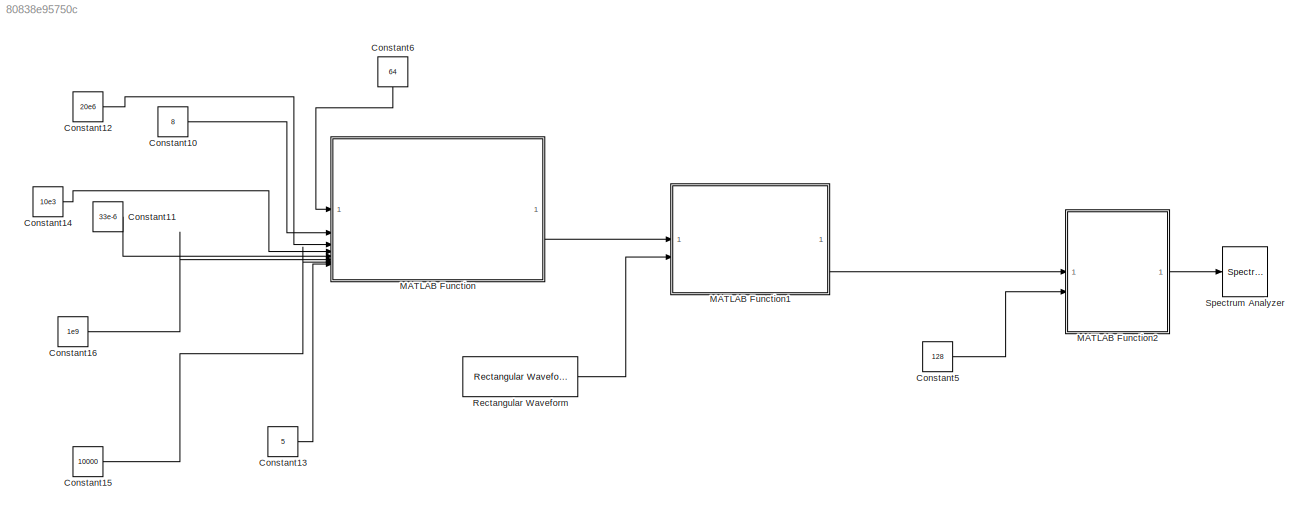
MODEL slx_80838e95750c
KIND model
CONFIG AbsTol = auto
CONFIG EnableMultiTasking = off
CONFIG FixedStep = auto
CONFIG MaxStep = auto
CONFIG MinStep = auto
CONFIG RelTol = 1e-3
CONFIG SampleTimeConstraint = Unconstrained
CONFIG SolverName = VariableStepAuto
CONFIG StartTime = 0.0
CONFIG StopTime = 0.01
BLOCK [Constant] Constant10
  Value = 8
BLOCK [Constant] Constant11
  Value = 33e-6
BLOCK [Constant] Constant12
  Value = 20e6
BLOCK [Constant] Constant13
  Value = 5
BLOCK [Constant] Constant14
  Value = 10e3
BLOCK [Constant] Constant15
  Value = 10000
BLOCK [Constant] Constant16
  Value = 1e9
BLOCK [Constant] Constant5
  Value = 128
BLOCK [Constant] Constant6
  NameLocation = left
  Value = 64
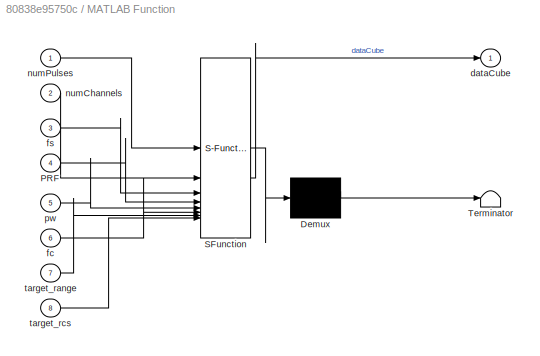
BLOCK [SubSystem] MATLAB Function
  ErrorFcn = Stateflow.Translate.translate
  PermitHierarchicalResolution = ExplicitOnly
  SFBlockType = MATLAB Function
  TreatAsAtomicUnit = on
BLOCK [Demux] MATLAB Function/ Demux 
  Outputs = 1
BLOCK [S-Function] MATLAB Function/ SFunction 
  EnableBusSupport = off
  FunctionName = sf_sfun
  PortCounts = [8 2]
  SFcnIsStateOwnerBlock = off
  SFunctionDeploymentMode = off
  Tag = Stateflow S-Function 2
BLOCK [Terminator] MATLAB Function/ Terminator 
BLOCK [Inport] MATLAB Function/PRF
  Port = 4
BLOCK [Outport] MATLAB Function/dataCube
BLOCK [Inport] MATLAB Function/fc
  Port = 6
BLOCK [Inport] MATLAB Function/fs
  Port = 3
BLOCK [Inport] MATLAB Function/numChannels
  Port = 2
BLOCK [Inport] MATLAB Function/numPulses
BLOCK [Inport] MATLAB Function/pw
  Port = 5
BLOCK [Inport] MATLAB Function/target_range
  Port = 7
BLOCK [Inport] MATLAB Function/target_rcs
  Port = 8
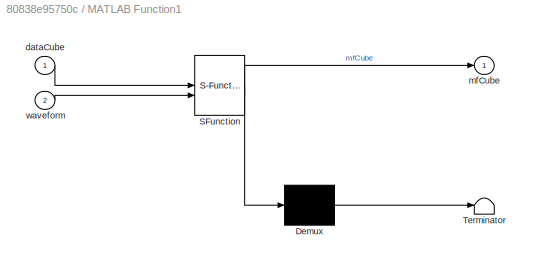
BLOCK [SubSystem] MATLAB Function1
  ErrorFcn = Stateflow.Translate.translate
  PermitHierarchicalResolution = ExplicitOnly
  SFBlockType = MATLAB Function
  TreatAsAtomicUnit = on
BLOCK [Demux] MATLAB Function1/ Demux 
  Outputs = 1
BLOCK [S-Function] MATLAB Function1/ SFunction 
  EnableBusSupport = off
  FunctionName = sf_sfun
  PortCounts = [2 2]
  SFcnIsStateOwnerBlock = off
  SFunctionDeploymentMode = off
  Tag = Stateflow S-Function 1
BLOCK [Terminator] MATLAB Function1/ Terminator 
BLOCK [Inport] MATLAB Function1/dataCube
BLOCK [Outport] MATLAB Function1/mfCube
BLOCK [Inport] MATLAB Function1/waveform
  Port = 2
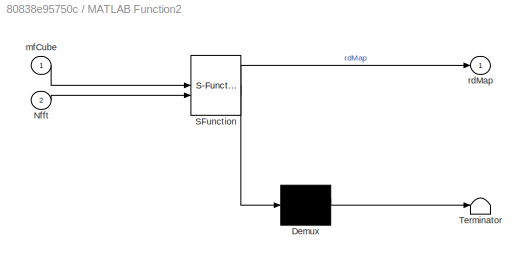
BLOCK [SubSystem] MATLAB Function2
  ErrorFcn = Stateflow.Translate.translate
  PermitHierarchicalResolution = ExplicitOnly
  SFBlockType = MATLAB Function
  TreatAsAtomicUnit = on
BLOCK [Demux] MATLAB Function2/ Demux 
  Outputs = 1
BLOCK [S-Function] MATLAB Function2/ SFunction 
  EnableBusSupport = off
  FunctionName = sf_sfun
  PortCounts = [2 2]
  SFcnIsStateOwnerBlock = off
  SFunctionDeploymentMode = off
  Tag = Stateflow S-Function 3
BLOCK [Terminator] MATLAB Function2/ Terminator 
BLOCK [Inport] MATLAB Function2/Nfft
  Port = 2
BLOCK [Inport] MATLAB Function2/mfCube
BLOCK [Outport] MATLAB Function2/rdMap
BLOCK [Reference] Rectangular Waveform  REF=phasedwavlib/Rectangular Waveform
  SourceBlock = phasedwavlib/Rectangular Waveform
  SourceType = phased.internal.SimulinkRectangularWaveform
BLOCK [SpectrumAnalyzer] Spectrum Analyzer
  WasSavedAsWebScope = on
  WindowInvariantSamplesPerUpdate = on
LINE Constant10:1 -> MATLAB Function:2
LINE Constant11:1 -> MATLAB Function:5
LINE Constant12:1 -> MATLAB Function:3
LINE Constant13:1 -> MATLAB Function:8
LINE Constant14:1 -> MATLAB Function:4
LINE Constant15:1 -> MATLAB Function:7
LINE Constant16:1 -> MATLAB Function:6
LINE Constant5:1 -> MATLAB Function2:2
LINE Constant6:1 -> MATLAB Function:1
LINE MATLAB Function1:1 -> MATLAB Function2:1
LINE MATLAB Function2:1 -> Spectrum Analyzer:1
LINE MATLAB Function:1 -> MATLAB Function1:1
LINE Rectangular Waveform:1 -> MATLAB Function1:2
CHART MATLAB Function1 states=1 transitions=1
  STATE_LABEL 'eML_blk_kernel()'
  STATE_LABEL "SCRIPT:\nfunction mfCube = applyMatchedFilter(dataCube,waveform)\n    ref = getMatchedFilter(waveform);\n    [N,K,L] = size(dataCube);\n    mfCube = zeros(N,K,L);\n    for ch = 1:L\n        for p = 1:K\n            mfCube(:,p,ch) = conv(dataCube(:,p,ch),ref,'same');\n        end\n    end\nend\n"
CHART MATLAB Function states=1 transitions=1
  STATE_LABEL 'eML_blk_kernel()'
  STATE_LABEL "SCRIPT:\nfunction dataCube = generateRadarCube(numPulses,numChannels,fs,PRF,pw,fc,target_range,target_rcs)\n    % Radar waveform\n    waveform = phased.RectangularWaveform('SampleRate',fs,'PRF',PRF,'PulseWidth',pw);\n    \n    % Array\n    C = physconst('LightSpeed');\n    antenna = phased.IsotropicAntennaElement('FrequencyRange',[800e6 1.2e9]);\n    Array = phased.ULA('NumElements',numChannels,'ElementSp...<+1222ch>"
CHART MATLAB Function2 states=1 transitions=1
  STATE_LABEL 'eML_blk_kernel()'
  STATE_LABEL 'SCRIPT:\nfunction rdMap = dopplerProcessing(mfCube,Nfft)\n    % Take one channel for now\n    rdMap = fftshift(fft(mfCube(:,:,1),Nfft,2),2);\nend\n'
CHART  states=0 transitions=0
CHART  states=0 transitions=0
CHART  states=0 transitions=0
